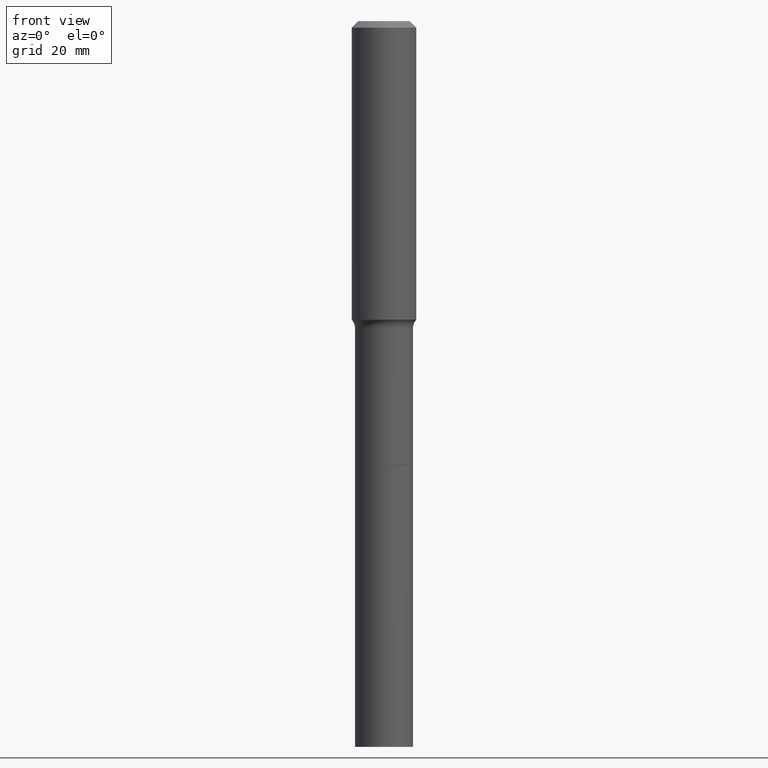
[diagram: clean part render]
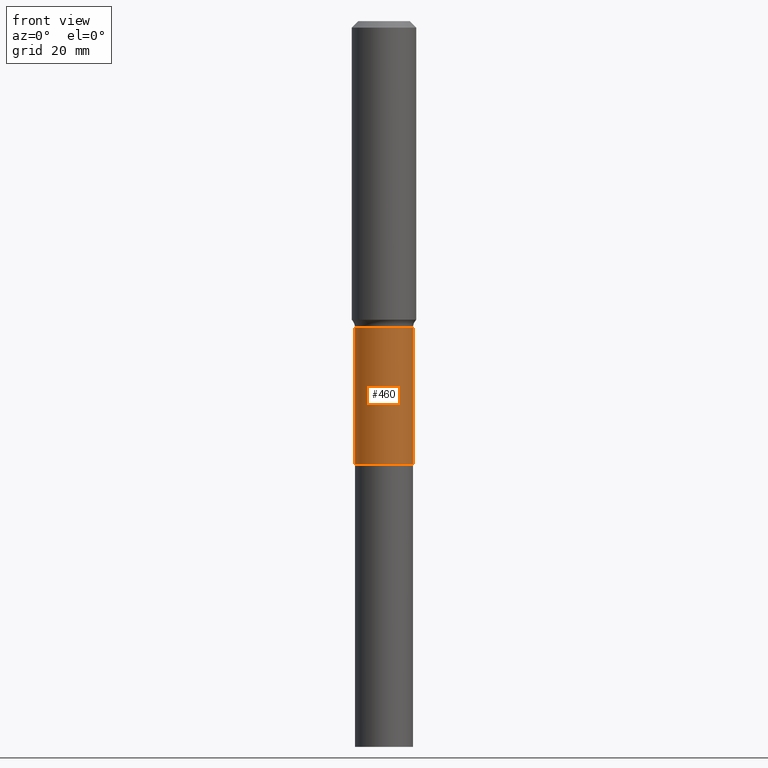
[diagram: same view with one face highlighted and labeled with its STEP entity id]
A machine part, front view. The second image highlights one B-rep face of the part: STEP entity #460.
In plain terms, the highlighted cylindrical surface (edge-blend (fillet) strip) has radius 5.4 mm, axis along (-0, 0, 1).
Its self-contained STEP definition (entity closure, byte-faithful):
#16 = CIRCLE ( 'NONE', #277, 0.2125999999999999834 ) ;
#19 = ORIENTED_EDGE ( 'NONE', *, *, #441, .F. ) ;
#32 = DIRECTION ( 'NONE',  ( -2.445468806185136597E-29, 3.491481338843145583E-15, 1.000000000000000000 ) ) ;
#40 = VERTEX_POINT ( 'NONE', #307 ) ;
#41 = DIRECTION ( 'NONE',  ( 1.000000000000000000, -6.982962677686269866E-15, 0.000000000000000000 ) ) ;
#71 = EDGE_LOOP ( 'NONE', ( #221, #275, #162, #19 ) ) ;
#86 = CARTESIAN_POINT ( 'NONE',  ( 0.2125999999999999279, -1.484577865276100080E-15, 1.036675182534215730E-29 ) ) ;
#111 = CARTESIAN_POINT ( 'NONE',  ( -0.2125999999999999834, -8.070883807894330677E-15, -3.244500000000000828 ) ) ;
#156 = CIRCLE ( 'NONE', #514, 0.2125999999999998724 ) ;
#157 = VERTEX_POINT ( 'NONE', #111 ) ;
#162 = ORIENTED_EDGE ( 'NONE', *, *, #410, .T. ) ;
#165 = VECTOR ( 'NONE', #420, 39.37007874015748143 ) ;
#177 = VERTEX_POINT ( 'NONE', #181 ) ;
#181 = CARTESIAN_POINT ( 'NONE',  ( 0.2125999999999999834, -1.281268906915268895E-14, -3.244500000000000828 ) ) ;
#189 = CARTESIAN_POINT ( 'NONE',  ( 0.2125999999999998724, -9.319461989640119105E-15, -2.244000000000000217 ) ) ;
#191 = VERTEX_POINT ( 'NONE', #189 ) ;
#193 = FACE_OUTER_BOUND ( 'NONE', #71, .T. ) ;
#221 = ORIENTED_EDGE ( 'NONE', *, *, #296, .F. ) ;
#239 = CYLINDRICAL_SURFACE ( 'NONE', #455, 0.2125999999999999279 ) ;
#245 = CARTESIAN_POINT ( 'NONE',  ( 5.487632001079447088E-29, -7.834884124364020406E-15, -2.244000000000000217 ) ) ;
#261 = CARTESIAN_POINT ( 'NONE',  ( -0.2125999999999999279, 1.510613856225972483E-15, -1.045765600188192591E-29 ) ) ;
#275 = ORIENTED_EDGE ( 'NONE', *, *, #416, .T. ) ;
#277 = AXIS2_PLACEMENT_3D ( 'NONE', #471, #32, #428 ) ;
#296 = EDGE_CURVE ( 'NONE', #157, #40, #498, .T. ) ;
#307 = CARTESIAN_POINT ( 'NONE',  ( -0.2125999999999998724, -8.070883807894330677E-15, -2.244000000000000217 ) ) ;
#334 = VECTOR ( 'NONE', #402, 39.37007874015748143 ) ;
#341 = LINE ( 'NONE', #86, #334 ) ;
#354 = CARTESIAN_POINT ( 'NONE',  ( 0.000000000000000000, 0.000000000000000000, 0.000000000000000000 ) ) ;
#359 = DIRECTION ( 'NONE',  ( -2.445468806185136597E-29, 3.491481338843145583E-15, 1.000000000000000000 ) ) ;
#402 = DIRECTION ( 'NONE',  ( -2.445468806185136877E-29, 3.491481338843145188E-15, 1.000000000000000000 ) ) ;
#410 = EDGE_CURVE ( 'NONE', #177, #191, #341, .T. ) ;
#416 = EDGE_CURVE ( 'NONE', #157, #177, #16, .T. ) ;
#420 = DIRECTION ( 'NONE',  ( -2.445468806185136877E-29, 3.491481338843145188E-15, 1.000000000000000000 ) ) ;
#428 = DIRECTION ( 'NONE',  ( 1.000000000000000000, -6.982962677686269866E-15, 0.000000000000000000 ) ) ;
#441 = EDGE_CURVE ( 'NONE', #40, #191, #156, .T. ) ;
#455 = AXIS2_PLACEMENT_3D ( 'NONE', #354, #359, #509 ) ;
#460 = ADVANCED_FACE ( 'NONE', ( #193 ), #239, .T. ) ;
#471 = CARTESIAN_POINT ( 'NONE',  ( 7.934323541667678728E-29, -1.132811120387658868E-14, -3.244500000000000828 ) ) ;
#481 = DIRECTION ( 'NONE',  ( -2.445468806185136597E-29, 3.491481338843145583E-15, 1.000000000000000000 ) ) ;
#498 = LINE ( 'NONE', #261, #165 ) ;
#509 = DIRECTION ( 'NONE',  ( 1.000000000000000000, -6.982962677686268288E-15, 4.876176775795936353E-29 ) ) ;
#514 = AXIS2_PLACEMENT_3D ( 'NONE', #245, #481, #41 ) ;